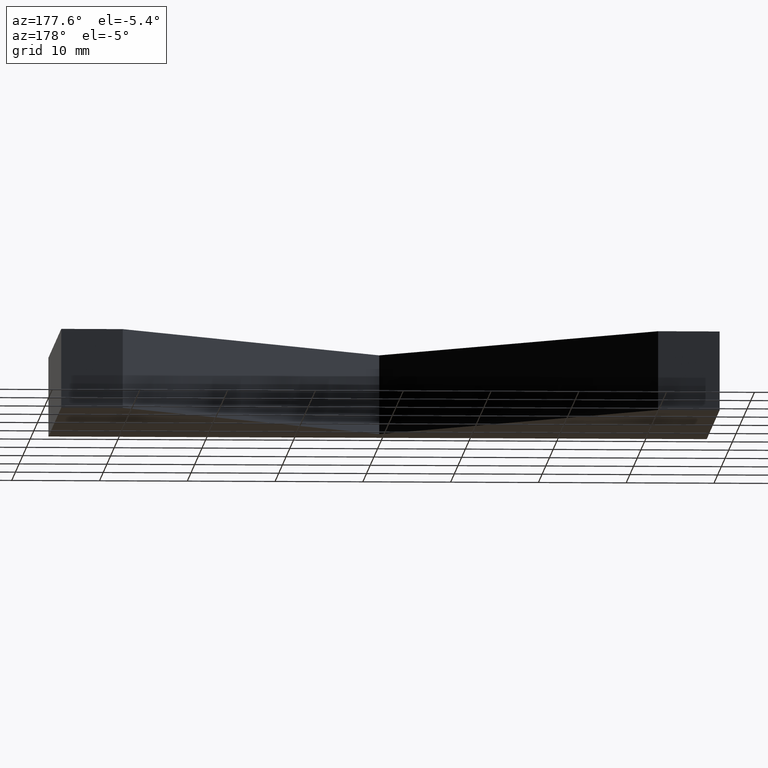
[diagram: clean part render]
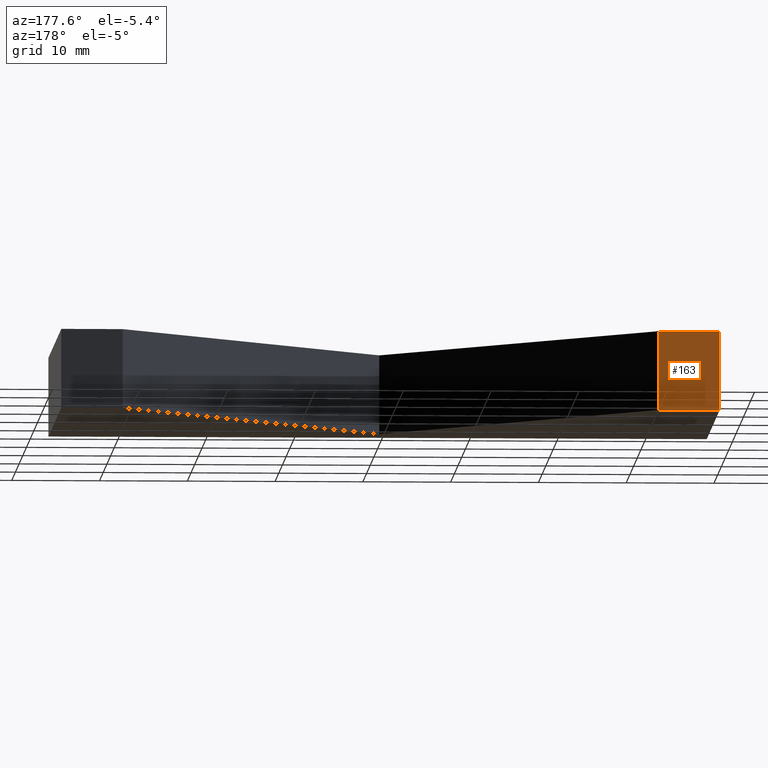
[diagram: same view with one face highlighted and labeled with its STEP entity id]
A machine part, auxiliary view. The second image highlights one B-rep face of the part: STEP entity #163.
In plain terms, the highlighted planar face has unit normal (-0, 1, 0).
Its self-contained STEP definition (entity closure, byte-faithful):
#17=FACE_OUTER_BOUND('',#26,.T.);
#26=EDGE_LOOP('',(#121,#122,#123,#124));
#36=LINE('',#253,#57);
#41=LINE('',#263,#62);
#43=LINE('',#267,#64);
#44=LINE('',#268,#65);
#57=VECTOR('',#209,10.);
#62=VECTOR('',#216,10.);
#64=VECTOR('',#220,10.);
#65=VECTOR('',#221,10.);
#78=VERTEX_POINT('',#250);
#79=VERTEX_POINT('',#252);
#83=VERTEX_POINT('',#261);
#84=VERTEX_POINT('',#266);
#92=EDGE_CURVE('',#79,#78,#36,.T.);
#97=EDGE_CURVE('',#83,#78,#41,.T.);
#99=EDGE_CURVE('',#83,#84,#43,.T.);
#100=EDGE_CURVE('',#84,#79,#44,.T.);
#121=ORIENTED_EDGE('',*,*,#99,.T.);
#122=ORIENTED_EDGE('',*,*,#100,.T.);
#123=ORIENTED_EDGE('',*,*,#92,.T.);
#124=ORIENTED_EDGE('',*,*,#97,.F.);
#154=PLANE('',#195);
#163=ADVANCED_FACE('',(#17),#154,.T.);
#195=AXIS2_PLACEMENT_3D('',#265,#218,#219);
#209=DIRECTION('',(-1.,-6.34413156928661E-16,0.));
#216=DIRECTION('',(0.,0.,-1.));
#218=DIRECTION('center_axis',(-6.34413156928661E-16,1.,0.));
#219=DIRECTION('ref_axis',(0.,0.,1.));
#220=DIRECTION('',(1.,6.34413156928661E-16,0.));
#221=DIRECTION('',(0.,0.,-1.));
#250=CARTESIAN_POINT('',(-37.5,35.,-4.5));
#252=CARTESIAN_POINT('',(-30.5,35.,-4.5));
#253=CARTESIAN_POINT('',(-37.5,35.,-4.5));
#261=CARTESIAN_POINT('',(-37.5,35.,4.5));
#263=CARTESIAN_POINT('',(-37.5,35.,0.));
#265=CARTESIAN_POINT('Origin',(-37.5,35.,0.));
#266=CARTESIAN_POINT('',(-30.5,35.,4.5));
#267=CARTESIAN_POINT('',(-37.5,35.,4.5));
#268=CARTESIAN_POINT('',(-30.5,35.,0.));